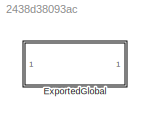
MODEL slx_2438d38093ac
KIND library
CONFIG AbsTol = auto
CONFIG EnableMultiTasking = off
CONFIG FixedStep = auto
CONFIG MaxStep = auto
CONFIG MinStep = auto
CONFIG RelTol = 1e-3
CONFIG SampleTimeConstraint = Unconstrained
CONFIG SolverName = VariableStepAuto
CONFIG StartTime = 0.0
CONFIG StopTime = 10.0
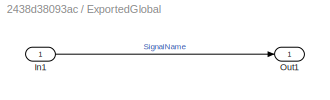
BLOCK [SubSystem] ExportedGlobal
BLOCK [Inport] ExportedGlobal/In1
BLOCK [Outport] ExportedGlobal/Out1
  VectorParamsAs1DForOutWhenUnconnected = off
LINE ExportedGlobal/In1:1 -> ExportedGlobal/Out1:1
